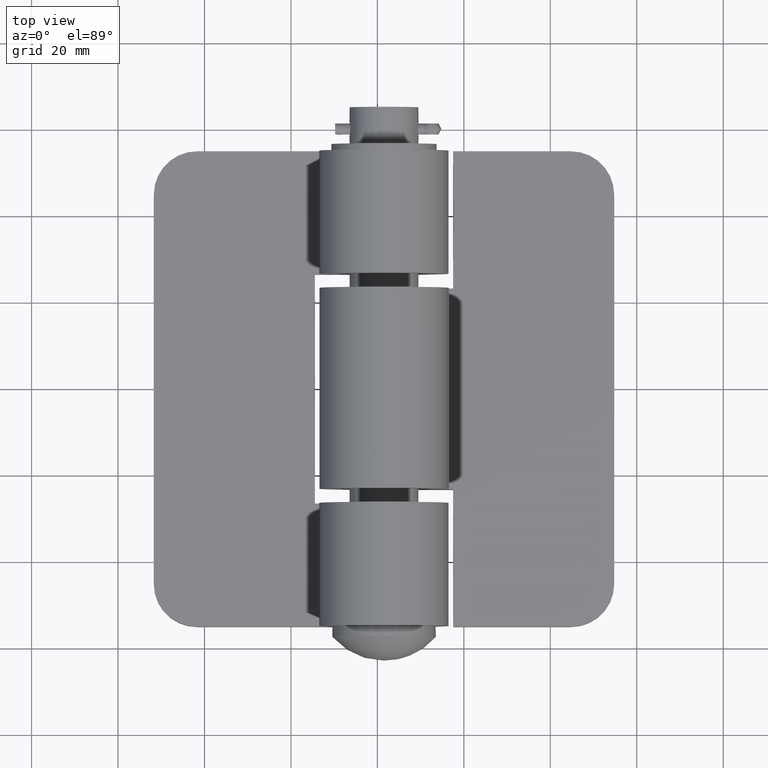
[diagram: clean part render]
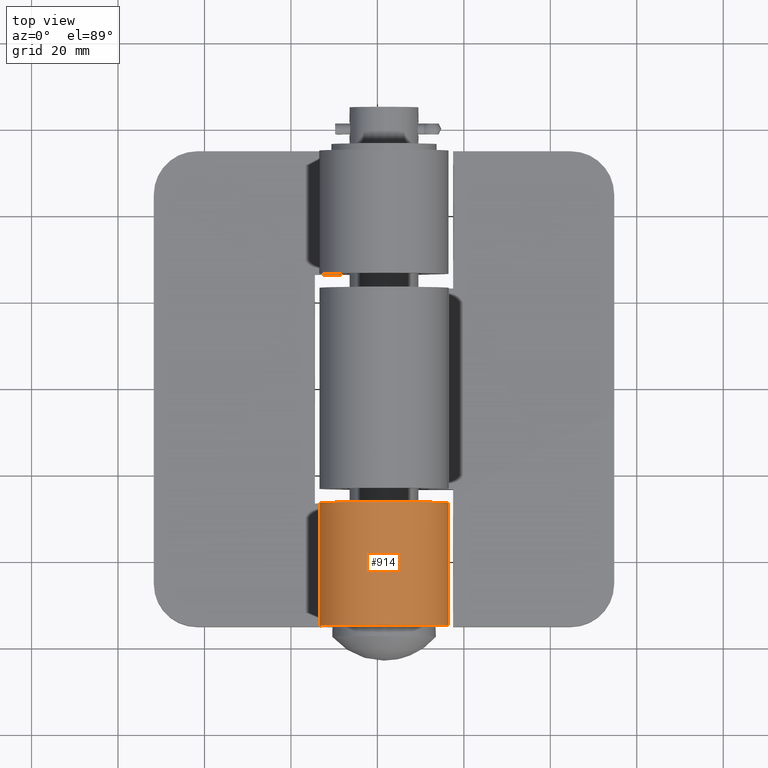
[diagram: same view with one face highlighted and labeled with its STEP entity id]
A machine part, top view. The second image highlights one B-rep face of the part: STEP entity #914.
In plain terms, the highlighted cylindrical surface (partial cylindrical patch) has radius 15 mm, axis along (0, -1, 0).
Its self-contained STEP definition (entity closure, byte-faithful):
#86=FACE_OUTER_BOUND('',#142,.T.);
#142=EDGE_LOOP('',(#669,#670,#671,#672));
#210=LINE('',#1404,#287);
#222=LINE('',#1443,#299);
#287=VECTOR('',#1099,28.5);
#299=VECTOR('',#1139,28.5);
#358=CIRCLE('',#976,15.);
#360=CIRCLE('',#979,15.);
#415=VERTEX_POINT('',#1401);
#416=VERTEX_POINT('',#1403);
#419=VERTEX_POINT('',#1413);
#422=VERTEX_POINT('',#1421);
#507=EDGE_CURVE('',#416,#415,#210,.T.);
#512=EDGE_CURVE('',#419,#416,#358,.T.);
#516=EDGE_CURVE('',#415,#422,#360,.T.);
#527=EDGE_CURVE('',#422,#419,#222,.T.);
#669=ORIENTED_EDGE('',*,*,#516,.T.);
#670=ORIENTED_EDGE('',*,*,#527,.T.);
#671=ORIENTED_EDGE('',*,*,#512,.T.);
#672=ORIENTED_EDGE('',*,*,#507,.T.);
#887=CYLINDRICAL_SURFACE('',#985,15.);
#914=ADVANCED_FACE('',(#86),#887,.T.);
#976=AXIS2_PLACEMENT_3D('',#1414,#1110,#1111);
#979=AXIS2_PLACEMENT_3D('',#1422,#1118,#1119);
#985=AXIS2_PLACEMENT_3D('',#1442,#1137,#1138);
#1099=DIRECTION('',(0.,0.,-1.));
#1110=DIRECTION('center_axis',(0.,0.,-1.));
#1111=DIRECTION('ref_axis',(2.03307067601102E-32,-1.,0.));
#1118=DIRECTION('center_axis',(-2.86509167645202E-16,-1.59044537342946E-32,
1.));
#1119=DIRECTION('ref_axis',(2.03307067601102E-32,-1.,0.));
#1137=DIRECTION('center_axis',(0.,0.,1.));
#1138=DIRECTION('ref_axis',(2.03307067601102E-32,-1.,0.));
#1139=DIRECTION('',(0.,0.,1.));
#1401=CARTESIAN_POINT('',(0.,0.,26.5));
#1403=CARTESIAN_POINT('',(0.,0.,55.));
#1404=CARTESIAN_POINT('',(0.,0.,0.));
#1413=CARTESIAN_POINT('',(-13.5946168055498,8.66072607388952,55.));
#1414=CARTESIAN_POINT('Origin',(-3.04960601401653E-31,15.,55.));
#1421=CARTESIAN_POINT('',(-13.5946168055498,8.66072607388952,26.5));
#1422=CARTESIAN_POINT('Origin',(-3.04960601401653E-31,15.,26.5));
#1442=CARTESIAN_POINT('Origin',(-3.04960601401653E-31,15.,0.));
#1443=CARTESIAN_POINT('',(-13.5946168055498,8.66072607388952,0.));